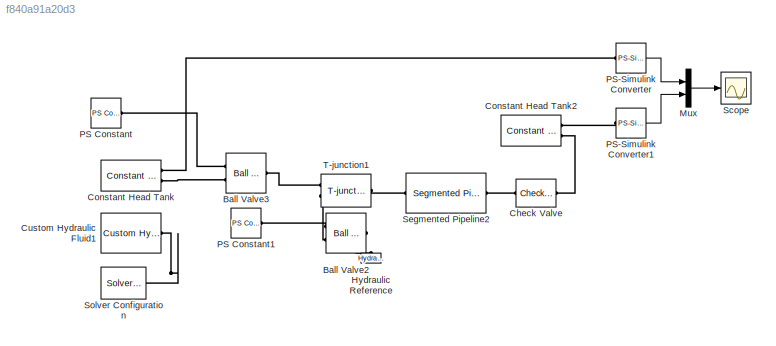
MODEL slx_f840a91a20d3
KIND model
CONFIG AbsTol = auto
CONFIG EnableMultiTasking = off
CONFIG FixedStep = auto
CONFIG MaxStep = auto
CONFIG MinStep = auto
CONFIG RelTol = 1e-3
CONFIG SampleTimeConstraint = Unconstrained
CONFIG Solver = VariableStepAuto
CONFIG SolverName = VariableStepAuto
CONFIG StartTime = 0.0
CONFIG StopTime = 100000
BLOCK [Reference] Ball Valve2  REF=sh_lib/Valves/Flow Control Valves/Ball Valve
  Ports = [0, 0, 0, 0, 0, 2, 1]
  SourceBlock = sh_lib/Valves/Flow Control Valves/Ball Valve
  SourceProductBaseCode = SH
  SourceProductName = Simscape Fluids
  SourceType = Ball Valve
BLOCK [Reference] Ball Valve3  REF=sh_lib/Valves/Flow Control Valves/Ball Valve
  Ports = [0, 0, 0, 0, 0, 2, 1]
  SourceBlock = sh_lib/Valves/Flow Control Valves/Ball Valve
  SourceProductBaseCode = SH
  SourceProductName = Simscape Fluids
  SourceType = Ball Valve
BLOCK [Reference] Check Valve  REF=sh_lib/Valves/Directional Valves/Check Valve
  Ports = [0, 0, 0, 0, 0, 1, 1]
  SourceBlock = sh_lib/Valves/Directional Valves/Check Valve
  SourceProductBaseCode = SH
  SourceProductName = Simscape Fluids
  SourceType = Check Valve
BLOCK [Reference] Constant Head Tank  REF=sh_lib/Low-Pressure Blocks/Constant Head Tank
  Ports = [0, 0, 0, 0, 0, 0, 2]
  SourceBlock = sh_lib/Low-Pressure Blocks/Constant Head Tank
  SourceProductBaseCode = SH
  SourceProductName = Simscape Fluids
  SourceType = Constant Head Tank
BLOCK [Reference] Constant Head Tank2  REF=sh_lib/Low-Pressure Blocks/Constant Head Tank
  Ports = [0, 0, 0, 0, 0, 0, 2]
  SourceBlock = sh_lib/Low-Pressure Blocks/Constant Head Tank
  SourceProductBaseCode = SH
  SourceProductName = Simscape Fluids
  SourceType = Constant Head Tank
BLOCK [Reference] Custom Hydraulic Fluid1  REF=fl_lib/Hydraulic/Hydraulic Utilities/Custom Hydraulic
Fluid
  Ports = [0, 0, 0, 0, 0, 0, 1]
  SourceBlock = fl_lib/Hydraulic/Hydraulic Utilities/Custom Hydraulic\nFluid
  SourceProductBaseCode = SS
  SourceProductName = Simscape
  SourceType = Custom Hydraulic\nFluid
BLOCK [Reference] Hydraulic Reference  REF=fl_lib/Hydraulic/Hydraulic Elements/Hydraulic Reference
  Ports = [0, 0, 0, 0, 0, 1]
  SourceBlock = fl_lib/Hydraulic/Hydraulic Elements/Hydraulic Reference
  SourceProductBaseCode = SS
  SourceProductName = Simscape
  SourceType = Hydraulic Reference
BLOCK [Mux] Mux
  DisplayOption = bar
  Inputs = 2
  Ports = [2, 1]
BLOCK [Reference] PS Constant  REF=fl_lib/Physical Signals/Sources/PS Constant
  Ports = [0, 0, 0, 0, 0, 0, 1]
  SourceBlock = fl_lib/Physical Signals/Sources/PS Constant
  SourceProductBaseCode = SS
  SourceProductName = Simscape
  SourceType = PS Constant
BLOCK [Reference] PS Constant1  REF=fl_lib/Physical Signals/Sources/PS Constant
  Ports = [0, 0, 0, 0, 0, 0, 1]
  SourceBlock = fl_lib/Physical Signals/Sources/PS Constant
  SourceProductBaseCode = SS
  SourceProductName = Simscape
  SourceType = PS Constant
BLOCK [Reference] PS-Simulink Converter  REF=nesl_utility/PS-Simulink
Converter
  Ports = [0, 1, 0, 0, 0, 1]
  SourceBlock = nesl_utility/PS-Simulink\nConverter
  SourceProductBaseCode = SS
  SourceProductName = Simscape
  SourceType = PS-Simulink\nConverter
BLOCK [Reference] PS-Simulink Converter1  REF=nesl_utility/PS-Simulink
Converter
  Ports = [0, 1, 0, 0, 0, 1]
  SourceBlock = nesl_utility/PS-Simulink\nConverter
  SourceProductBaseCode = SS
  SourceProductName = Simscape
  SourceType = PS-Simulink\nConverter
BLOCK [Scope] Scope
  Floating = off
  NumInputPorts = 1
  Ports = [1]
  ScopeSpecificationString = Simulink.scopes.TimeScopeBlockCfg('CurrentConfiguration', extmgr.ConfigurationSet(extmgr.Configuration('Core','General UI',true),extmgr.Configuration('Core','Source UI',true),extmgr.Configuration('Sources','WiredSimulink',true,'DataLoggingVariableName','ScopeData1'),extmgr.Configuration('Visuals','Time Domain',true,'SerializedDisplays',{struct('MinYLimReal','-0.875','MaxYLimReal','7.875','YLabelRe...<+1524ch>
BLOCK [Reference] Segmented Pipeline2  REF=sh_lib/Pipelines/Segmented Pipeline
  Ports = [0, 0, 0, 0, 0, 1, 1]
  SourceBlock = sh_lib/Pipelines/Segmented Pipeline
  SourceProductBaseCode = SH
  SourceProductName = Simscape Fluids
  SourceType = Segmented Pipeline
BLOCK [Reference] Solver Configuration  REF=nesl_utility/Solver
Configuration
  Ports = [0, 0, 0, 0, 0, 0, 1]
  SourceBlock = nesl_utility/Solver\nConfiguration
  SourceProductBaseCode = SS
  SourceProductName = Simscape
  SourceType = Solver\nConfiguration
BLOCK [Reference] T-junction1  REF=sh_lib/Local Hydraulic
Resistances/T-junction
  Ports = [0, 0, 0, 0, 0, 2, 1]
  SourceBlock = sh_lib/Local Hydraulic\nResistances/T-junction
  SourceProductBaseCode = SH
  SourceProductName = Simscape Fluids
  SourceType = T-junction
LINE Mux:1 -> Scope:1
LINE PS-Simulink Converter1:1 -> Mux:2
LINE PS-Simulink Converter:1 -> Mux:1
PLINE Ball Valve2:LConn1 -- PS Constant1:RConn1
PLINE Ball Valve2:LConn2 -- T-junction1:LConn2
PLINE Ball Valve2:RConn1 -- Hydraulic Reference:LConn1
PLINE Ball Valve3:LConn1 -- PS Constant:RConn1
PNET net1: Ball Valve3:LConn2 -- Constant Head Tank:RConn2 -- Custom Hydraulic Fluid1:RConn1 -- Solver Configuration:RConn1
PLINE Ball Valve3:RConn1 -- T-junction1:LConn1
PLINE Check Valve:LConn1 -- Segmented Pipeline2:RConn1
PLINE Check Valve:RConn1 -- Constant Head Tank2:RConn2
PLINE Constant Head Tank2:RConn1 -- PS-Simulink Converter1:LConn1
PLINE Constant Head Tank:RConn1 -- PS-Simulink Converter:LConn1
PLINE Segmented Pipeline2:LConn1 -- T-junction1:RConn1
note: PNET lines group multi-terminal physical nets as a canonical sorted terminal list (undirected conserving connections); 2-terminal nets keep the pairwise PLINE form
